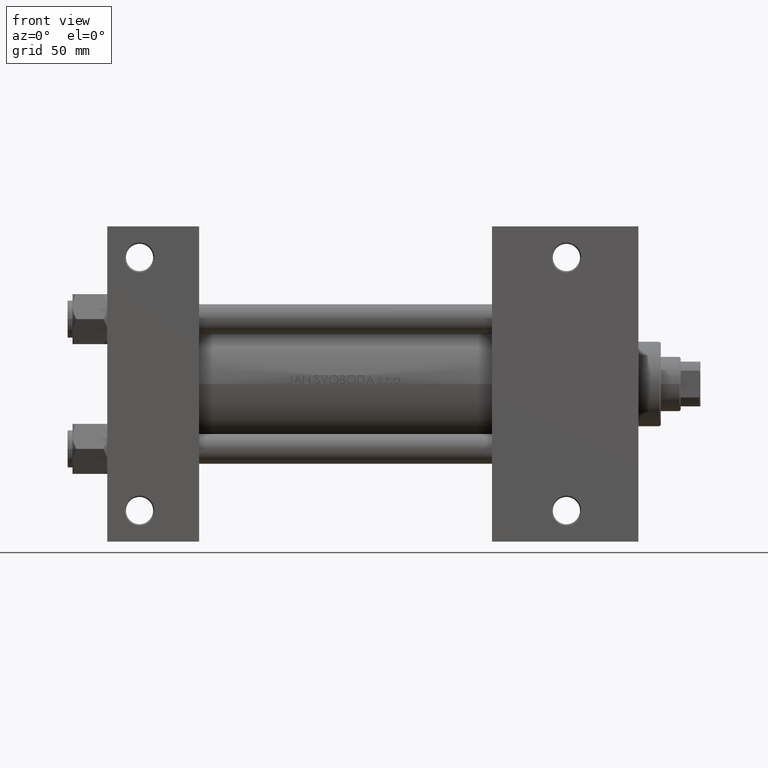
[diagram: clean part render]
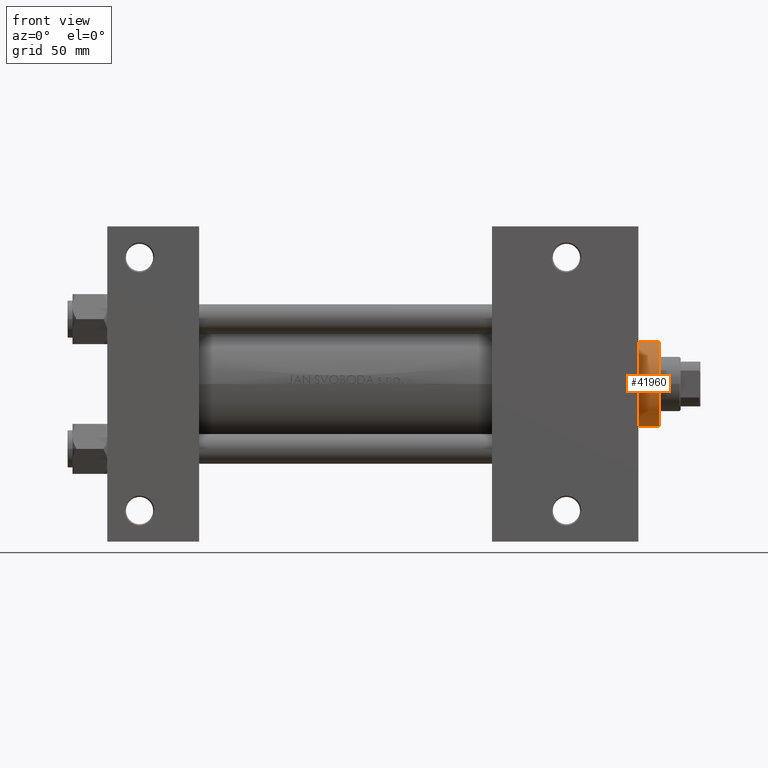
[diagram: same view with one face highlighted and labeled with its STEP entity id]
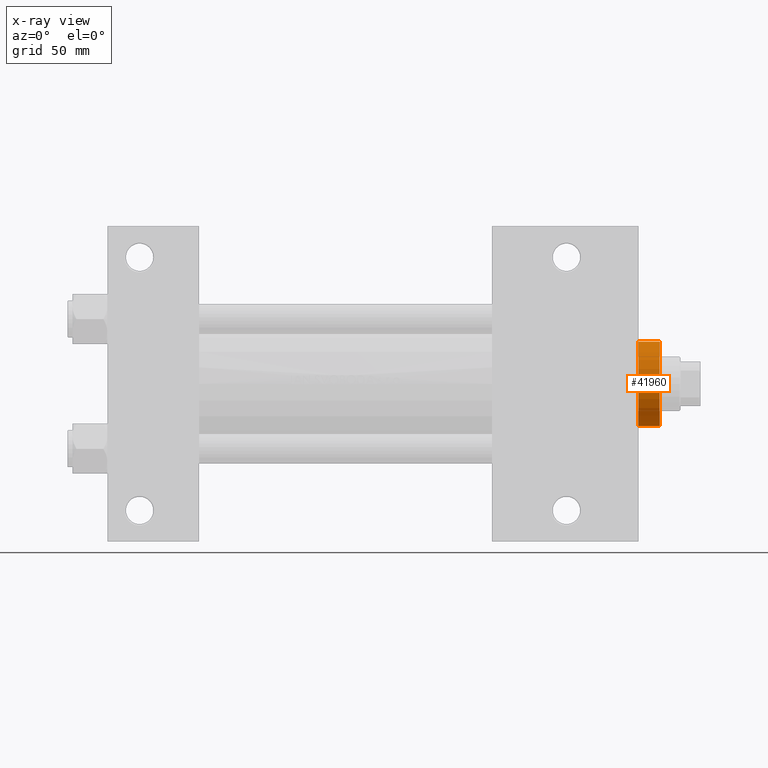
[diagram: x-ray of the same camera — body ghosted, the highlighted face saturated]
A machine part, front view. The second image highlights one B-rep face of the part: STEP entity #41960.
The next image is the same camera in x-ray: the body ghosted, the highlighted face saturated — about 0% of this face is hidden behind the body in this view.
In plain terms, the highlighted cylindrical surface (partial cylindrical patch) has radius 17 mm, axis along (-1, -0, 0).
Its self-contained STEP definition (entity closure, byte-faithful):
#546 = VERTEX_POINT ( 'NONE', #18650 ) ;
#966 = LINE ( 'NONE', #35802, #28448 ) ;
#1693 = CARTESIAN_POINT ( 'NONE',  ( -17.00000000000000000, 0.000000000000000000, 28.69999999999999929 ) ) ;
#3150 = EDGE_CURVE ( 'NONE', #26429, #16083, #20303, .T. ) ;
#3266 = DIRECTION ( 'NONE',  ( -0.000000000000000000, -0.000000000000000000, -1.000000000000000000 ) ) ;
#3330 = ORIENTED_EDGE ( 'NONE', *, *, #13541, .F. ) ;
#5877 = AXIS2_PLACEMENT_3D ( 'NONE', #37626, #3266, #11233 ) ;
#6754 = CYLINDRICAL_SURFACE ( 'NONE', #5877, 17.00000000000000000 ) ;
#7300 = CARTESIAN_POINT ( 'NONE',  ( 0.000000000000000000, 0.000000000000000000, 37.19999999999999574 ) ) ;
#8844 = ORIENTED_EDGE ( 'NONE', *, *, #21876, .T. ) ;
#8927 = DIRECTION ( 'NONE',  ( 1.000000000000000000, 0.000000000000000000, 0.000000000000000000 ) ) ;
#11233 = DIRECTION ( 'NONE',  ( -1.000000000000000000, 0.000000000000000000, 0.000000000000000000 ) ) ;
#13205 = EDGE_CURVE ( 'NONE', #44238, #26429, #966, .T. ) ;
#13541 = EDGE_CURVE ( 'NONE', #546, #16083, #33244, .T. ) ;
#13962 = ORIENTED_EDGE ( 'NONE', *, *, #13205, .T. ) ;
#14113 = AXIS2_PLACEMENT_3D ( 'NONE', #7300, #37678, #33933 ) ;
#14667 = CARTESIAN_POINT ( 'NONE',  ( 17.00000000000000000, 2.081899558550500280E-15, 28.69999999999999929 ) ) ;
#16083 = VERTEX_POINT ( 'NONE', #14667 ) ;
#17552 = CARTESIAN_POINT ( 'NONE',  ( 17.00000000000000000, 2.081899558550500280E-15, 37.69999999999999574 ) ) ;
#18650 = CARTESIAN_POINT ( 'NONE',  ( 17.00000000000000000, 2.081899558550500280E-15, 37.19999999999999574 ) ) ;
#20303 = CIRCLE ( 'NONE', #41012, 17.00000000000000000 ) ;
#20804 = DIRECTION ( 'NONE',  ( -0.000000000000000000, -0.000000000000000000, -1.000000000000000000 ) ) ;
#21689 = FACE_OUTER_BOUND ( 'NONE', #34157, .T. ) ;
#21876 = EDGE_CURVE ( 'NONE', #546, #44238, #35567, .T. ) ;
#22161 = VECTOR ( 'NONE', #20804, 1000.000000000000000 ) ;
#22690 = CARTESIAN_POINT ( 'NONE',  ( -17.00000000000000000, 0.000000000000000000, 37.19999999999999574 ) ) ;
#24109 = DIRECTION ( 'NONE',  ( 0.000000000000000000, 0.000000000000000000, 1.000000000000000000 ) ) ;
#26429 = VERTEX_POINT ( 'NONE', #1693 ) ;
#28448 = VECTOR ( 'NONE', #39793, 1000.000000000000000 ) ;
#28555 = CARTESIAN_POINT ( 'NONE',  ( 0.000000000000000000, 0.000000000000000000, 28.69999999999999929 ) ) ;
#33244 = LINE ( 'NONE', #17552, #22161 ) ;
#33933 = DIRECTION ( 'NONE',  ( 1.000000000000000000, 0.000000000000000000, 0.000000000000000000 ) ) ;
#34157 = EDGE_LOOP ( 'NONE', ( #3330, #8844, #13962, #44204 ) ) ;
#35567 = CIRCLE ( 'NONE', #14113, 17.00000000000000000 ) ;
#35802 = CARTESIAN_POINT ( 'NONE',  ( -17.00000000000000000, 0.000000000000000000, 37.69999999999999574 ) ) ;
#37626 = CARTESIAN_POINT ( 'NONE',  ( 0.000000000000000000, 0.000000000000000000, 37.69999999999999574 ) ) ;
#37678 = DIRECTION ( 'NONE',  ( 0.000000000000000000, 0.000000000000000000, -1.000000000000000000 ) ) ;
#39793 = DIRECTION ( 'NONE',  ( -0.000000000000000000, -0.000000000000000000, -1.000000000000000000 ) ) ;
#41012 = AXIS2_PLACEMENT_3D ( 'NONE', #28555, #24109, #8927 ) ;
#41960 = ADVANCED_FACE ( 'NONE', ( #21689 ), #6754, .T. ) ;
#44204 = ORIENTED_EDGE ( 'NONE', *, *, #3150, .T. ) ;
#44238 = VERTEX_POINT ( 'NONE', #22690 ) ;